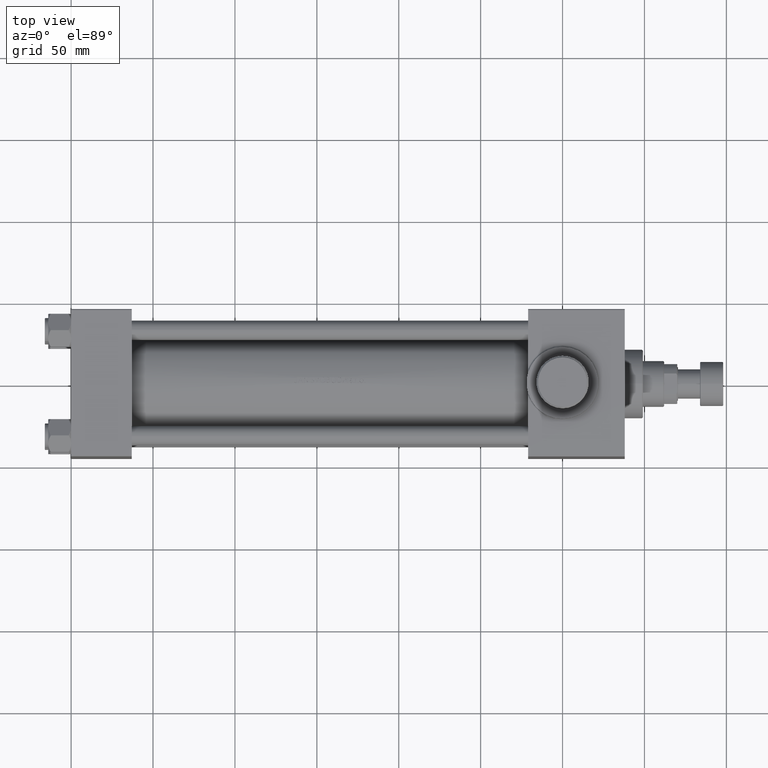
[diagram: clean part render]
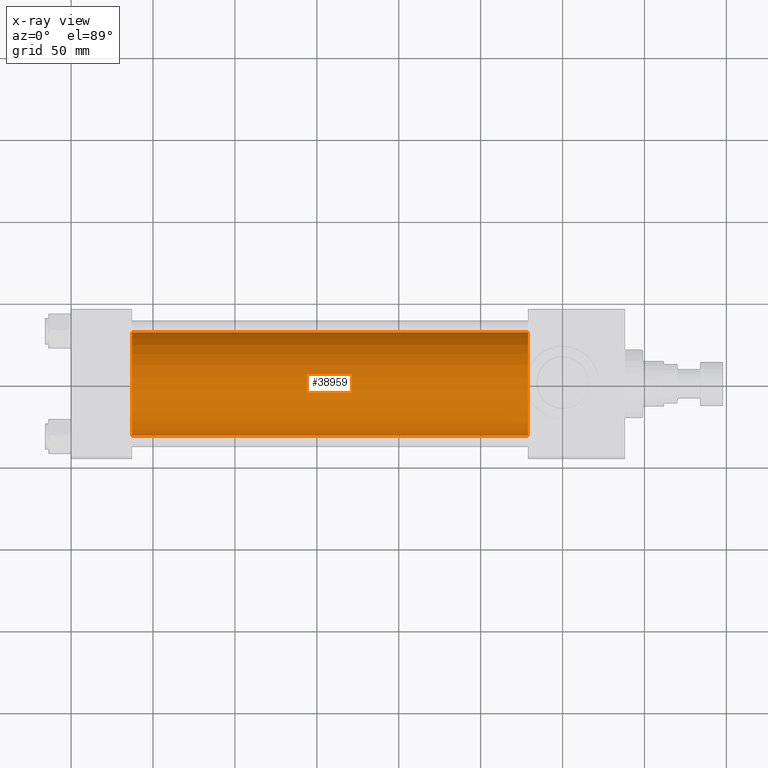
[diagram: x-ray — body ghosted, one internal face saturated and labeled with its STEP entity id]
A machine part, top view, then the same camera in x-ray: the body is ghosted and one INTERNAL B-rep face — a face not visible from any outside direction — is saturated and labeled: STEP entity #38959.
In plain terms, the highlighted cylindrical surface (partial cylindrical patch) has radius 31.5 mm, axis along (-1, -0, 0).
Its self-contained STEP definition (entity closure, byte-faithful):
#259 = CARTESIAN_POINT ( 'NONE',  ( 37.00000000000000000, -3.469446951953614189E-15, 0.000000000000000000 ) ) ;
#346 = AXIS2_PLACEMENT_3D ( 'NONE', #259, #11198, #25957 ) ;
#663 = ORIENTED_EDGE ( 'NONE', *, *, #41014, .F. ) ;
#1725 = ORIENTED_EDGE ( 'NONE', *, *, #32470, .T. ) ;
#2050 = CARTESIAN_POINT ( 'NONE',  ( 278.9999999999999432, 3.881904653605483521E-16, -31.50000000000000000 ) ) ;
#2201 = DIRECTION ( 'NONE',  ( 0.000000000000000000, 0.000000000000000000, -1.000000000000000000 ) ) ;
#2748 = DIRECTION ( 'NONE',  ( -1.000000000000000000, -0.000000000000000000, -0.000000000000000000 ) ) ;
#3708 = VECTOR ( 'NONE', #29813, 1000.000000000000000 ) ;
#4708 = EDGE_CURVE ( 'NONE', #29328, #12307, #39865, .T. ) ;
#6451 = DIRECTION ( 'NONE',  ( -1.000000000000000000, -0.000000000000000000, -0.000000000000000000 ) ) ;
#7541 = CARTESIAN_POINT ( 'NONE',  ( 278.9999999999999432, -3.469446951953614189E-15, 31.50000000000000000 ) ) ;
#11198 = DIRECTION ( 'NONE',  ( 1.000000000000000000, 0.000000000000000000, 0.000000000000000000 ) ) ;
#11714 = ORIENTED_EDGE ( 'NONE', *, *, #4708, .F. ) ;
#12015 = AXIS2_PLACEMENT_3D ( 'NONE', #45742, #6451, #20969 ) ;
#12307 = VERTEX_POINT ( 'NONE', #39466 ) ;
#14939 = VERTEX_POINT ( 'NONE', #7541 ) ;
#16937 = FACE_OUTER_BOUND ( 'NONE', #21836, .T. ) ;
#18497 = VERTEX_POINT ( 'NONE', #43300 ) ;
#20969 = DIRECTION ( 'NONE',  ( 0.000000000000000000, 0.000000000000000000, 1.000000000000000000 ) ) ;
#21836 = EDGE_LOOP ( 'NONE', ( #43110, #1725, #11714, #663 ) ) ;
#22673 = CARTESIAN_POINT ( 'NONE',  ( 278.9999999999999432, -3.469446951953614189E-15, 31.50000000000000000 ) ) ;
#23241 = VECTOR ( 'NONE', #2748, 1000.000000000000000 ) ;
#24182 = CIRCLE ( 'NONE', #34060, 31.50000000000000000 ) ;
#24593 = CARTESIAN_POINT ( 'NONE',  ( 37.00000000000000000, -3.469446951953614189E-15, 31.50000000000000000 ) ) ;
#25957 = DIRECTION ( 'NONE',  ( 0.000000000000000000, 0.000000000000000000, -1.000000000000000000 ) ) ;
#27506 = LINE ( 'NONE', #2050, #23241 ) ;
#29328 = VERTEX_POINT ( 'NONE', #24593 ) ;
#29578 = LINE ( 'NONE', #22673, #3708 ) ;
#29813 = DIRECTION ( 'NONE',  ( -1.000000000000000000, -0.000000000000000000, -0.000000000000000000 ) ) ;
#31681 = CARTESIAN_POINT ( 'NONE',  ( 278.9999999999999432, -3.469446951953614189E-15, 0.000000000000000000 ) ) ;
#32470 = EDGE_CURVE ( 'NONE', #18497, #12307, #27506, .T. ) ;
#34060 = AXIS2_PLACEMENT_3D ( 'NONE', #31681, #45509, #2201 ) ;
#34790 = CYLINDRICAL_SURFACE ( 'NONE', #12015, 31.50000000000000000 ) ;
#38959 = ADVANCED_FACE ( 'NONE', ( #16937 ), #34790, .F. ) ;
#39065 = EDGE_CURVE ( 'NONE', #14939, #18497, #24182, .T. ) ;
#39466 = CARTESIAN_POINT ( 'NONE',  ( 37.00000000000000000, 3.881904653605483521E-16, -31.50000000000000000 ) ) ;
#39865 = CIRCLE ( 'NONE', #346, 31.50000000000000000 ) ;
#41014 = EDGE_CURVE ( 'NONE', #14939, #29328, #29578, .T. ) ;
#43110 = ORIENTED_EDGE ( 'NONE', *, *, #39065, .T. ) ;
#43300 = CARTESIAN_POINT ( 'NONE',  ( 278.9999999999999432, 3.881904653605483521E-16, -31.50000000000000000 ) ) ;
#45509 = DIRECTION ( 'NONE',  ( 1.000000000000000000, 0.000000000000000000, 0.000000000000000000 ) ) ;
#45742 = CARTESIAN_POINT ( 'NONE',  ( 278.9999999999999432, -3.469446951953614189E-15, 0.000000000000000000 ) ) ;